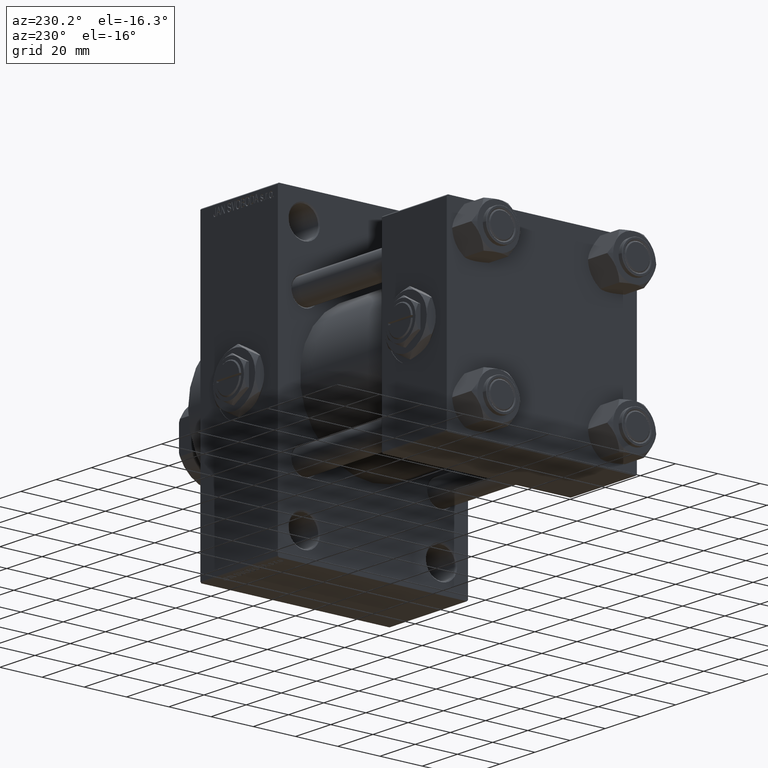
[diagram: clean part render]
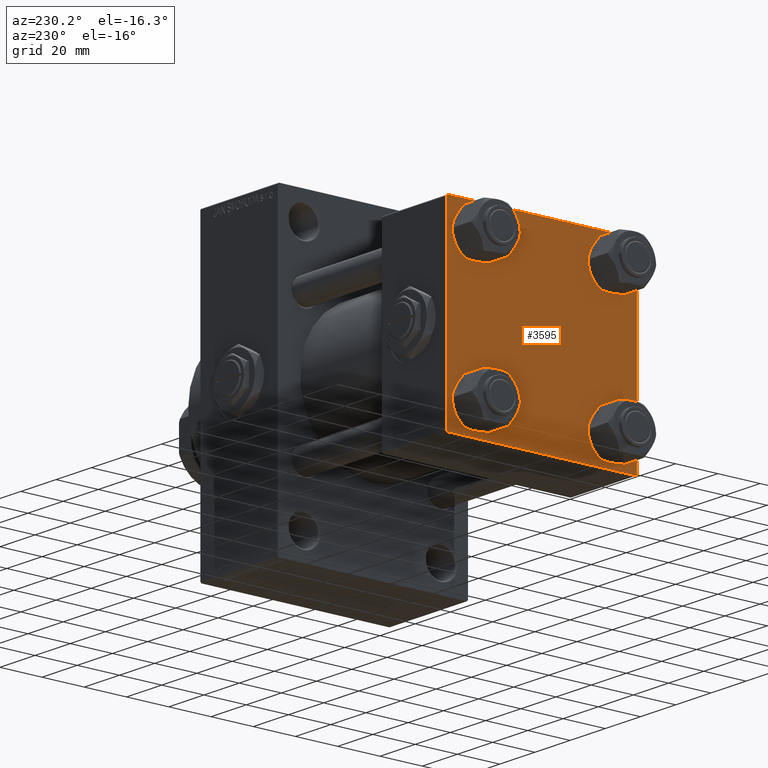
[diagram: same view with one face highlighted and labeled with its STEP entity id]
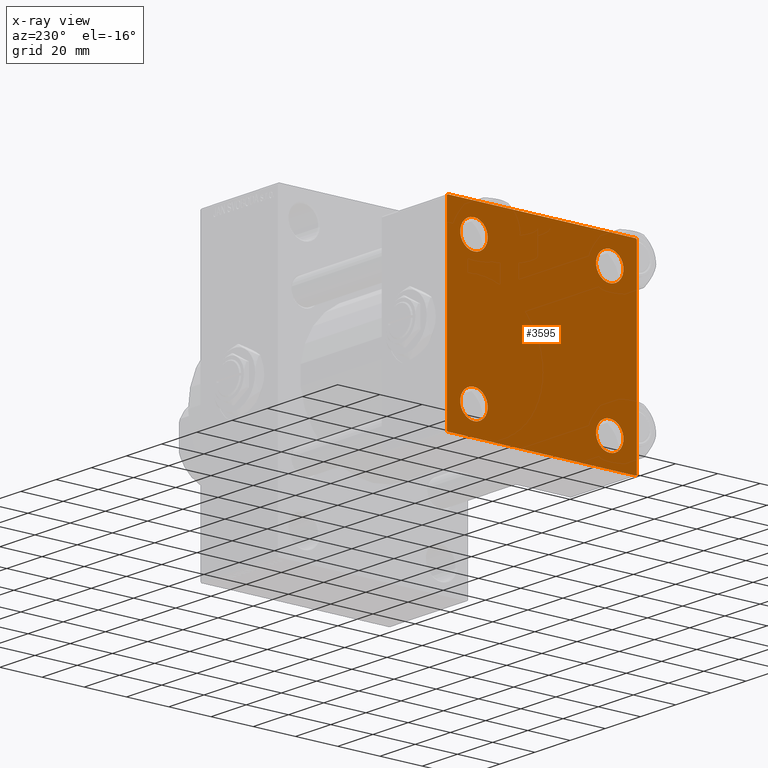
[diagram: x-ray of the same camera — body ghosted, the highlighted face saturated]
A machine part, auxiliary view. The second image highlights one B-rep face of the part: STEP entity #3595.
The next image is the same camera in x-ray: the body ghosted, the highlighted face saturated — about 0% of this face is hidden behind the body in this view.
In plain terms, the highlighted planar face has unit normal (-1, 0, 0).
Its self-contained STEP definition (entity closure, byte-faithful):
#136 = DIRECTION ( 'NONE',  ( 0.000000000000000000, 0.000000000000000000, 1.000000000000000000 ) ) ;
#345 = FACE_OUTER_BOUND ( 'NONE', #4089, .T. ) ;
#622 = VERTEX_POINT ( 'NONE', #14293 ) ;
#1809 = AXIS2_PLACEMENT_3D ( 'NONE', #7377, #27048, #136 ) ;
#1887 = ORIENTED_EDGE ( 'NONE', *, *, #38608, .F. ) ;
#2057 = DIRECTION ( 'NONE',  ( 0.000000000000000000, 0.000000000000000000, 1.000000000000000000 ) ) ;
#2187 = CARTESIAN_POINT ( 'NONE',  ( 0.000000000000000000, 44.99999999999998579, 45.00000000000001421 ) ) ;
#2371 = EDGE_CURVE ( 'NONE', #32012, #8117, #25524, .T. ) ;
#2695 = CIRCLE ( 'NONE', #20220, 6.500000000000019540 ) ;
#3351 = CARTESIAN_POINT ( 'NONE',  ( 0.000000000000000000, 44.49999999999998579, -44.99999999999998579 ) ) ;
#3595 = ADVANCED_FACE ( 'NONE', ( #31014, #26533, #4086, #30777, #345 ), #45967, .T. ) ;
#4086 = FACE_BOUND ( 'NONE', #34929, .T. ) ;
#4089 = EDGE_LOOP ( 'NONE', ( #37182, #25347, #30563, #41680, #1887, #44885, #48570, #26129 ) ) ;
#5018 = VECTOR ( 'NONE', #6180, 1000.000000000000000 ) ;
#5196 = VERTEX_POINT ( 'NONE', #31880 ) ;
#5200 = LINE ( 'NONE', #2187, #5018 ) ;
#5568 = EDGE_CURVE ( 'NONE', #8069, #47078, #18339, .T. ) ;
#5864 = AXIS2_PLACEMENT_3D ( 'NONE', #39366, #12185, #38382 ) ;
#6180 = DIRECTION ( 'NONE',  ( 0.000000000000000000, 0.000000000000000000, -1.000000000000000000 ) ) ;
#6206 = CARTESIAN_POINT ( 'NONE',  ( 0.000000000000000000, -32.14999999999997726, 25.64999999999999147 ) ) ;
#6373 = AXIS2_PLACEMENT_3D ( 'NONE', #14598, #7385, #6402 ) ;
#6384 = CARTESIAN_POINT ( 'NONE',  ( 0.000000000000000000, -32.14999999999997726, -25.65000000000003411 ) ) ;
#6402 = DIRECTION ( 'NONE',  ( 0.000000000000000000, 0.000000000000000000, 1.000000000000000000 ) ) ;
#7098 = DIRECTION ( 'NONE',  ( 0.000000000000000000, -0.7071067811865474617, 0.7071067811865474617 ) ) ;
#7228 = DIRECTION ( 'NONE',  ( 0.000000000000000000, 7.709882115452476934E-17, -1.000000000000000000 ) ) ;
#7377 = CARTESIAN_POINT ( 'NONE',  ( 0.000000000000000000, -32.14999999999997726, 32.15000000000001279 ) ) ;
#7385 = DIRECTION ( 'NONE',  ( 1.000000000000000000, -0.000000000000000000, 0.000000000000000000 ) ) ;
#7589 = DIRECTION ( 'NONE',  ( -0.000000000000000000, 0.000000000000000000, 1.000000000000000000 ) ) ;
#7622 = CARTESIAN_POINT ( 'NONE',  ( 0.000000000000000000, 44.99999999999998579, 44.50000000000001421 ) ) ;
#8069 = VERTEX_POINT ( 'NONE', #20229 ) ;
#8117 = VERTEX_POINT ( 'NONE', #23964 ) ;
#8143 = EDGE_CURVE ( 'NONE', #14222, #48624, #12064, .T. ) ;
#9106 = DIRECTION ( 'NONE',  ( 0.000000000000000000, 0.000000000000000000, 1.000000000000000000 ) ) ;
#9664 = EDGE_CURVE ( 'NONE', #5196, #33895, #30677, .T. ) ;
#9719 = VECTOR ( 'NONE', #18957, 1000.000000000000114 ) ;
#10227 = CARTESIAN_POINT ( 'NONE',  ( 0.000000000000000000, -32.14999999999997726, -38.64999999999999147 ) ) ;
#10607 = LINE ( 'NONE', #13861, #45536 ) ;
#11458 = CARTESIAN_POINT ( 'NONE',  ( 0.000000000000000000, -45.00000000000000000, -44.49999999999995737 ) ) ;
#11811 = CARTESIAN_POINT ( 'NONE',  ( 0.000000000000000000, 0.000000000000000000, 0.000000000000000000 ) ) ;
#12064 = CIRCLE ( 'NONE', #39934, 6.499999999999977796 ) ;
#12185 = DIRECTION ( 'NONE',  ( 1.000000000000000000, -0.000000000000000000, 0.000000000000000000 ) ) ;
#12347 = CARTESIAN_POINT ( 'NONE',  ( 0.000000000000000000, -32.14999999999997726, -32.15000000000001279 ) ) ;
#13129 = DIRECTION ( 'NONE',  ( 0.000000000000000000, -1.000000000000000000, -1.541976423090495633E-16 ) ) ;
#13861 = CARTESIAN_POINT ( 'NONE',  ( 0.000000000000000000, 44.99999999999998579, 45.00000000000001421 ) ) ;
#13879 = VECTOR ( 'NONE', #32747, 1000.000000000000114 ) ;
#14222 = VERTEX_POINT ( 'NONE', #6384 ) ;
#14293 = CARTESIAN_POINT ( 'NONE',  ( 0.000000000000000000, -32.14999999999997726, 38.65000000000003411 ) ) ;
#14549 = EDGE_CURVE ( 'NONE', #26441, #39357, #16807, .T. ) ;
#14598 = CARTESIAN_POINT ( 'NONE',  ( 0.000000000000000000, 32.14999999999999147, -32.15000000000000568 ) ) ;
#14906 = VECTOR ( 'NONE', #13129, 1000.000000000000000 ) ;
#14951 = LINE ( 'NONE', #38145, #36773 ) ;
#15189 = ORIENTED_EDGE ( 'NONE', *, *, #46590, .T. ) ;
#15453 = CARTESIAN_POINT ( 'NONE',  ( 0.000000000000000000, 44.74999999999999289, 44.74999999999999289 ) ) ;
#15674 = CARTESIAN_POINT ( 'NONE',  ( 0.000000000000000000, 32.14999999999999147, 32.15000000000000568 ) ) ;
#16083 = EDGE_CURVE ( 'NONE', #48624, #14222, #40181, .T. ) ;
#16227 = DIRECTION ( 'NONE',  ( 0.000000000000000000, 0.000000000000000000, 1.000000000000000000 ) ) ;
#16807 = LINE ( 'NONE', #46969, #13879 ) ;
#16875 = CARTESIAN_POINT ( 'NONE',  ( 0.000000000000000000, 44.99999999999998579, -44.99999999999998579 ) ) ;
#17363 = LINE ( 'NONE', #16875, #14906 ) ;
#18339 = LINE ( 'NONE', #30305, #20051 ) ;
#18363 = DIRECTION ( 'NONE',  ( 1.000000000000000000, -0.000000000000000000, 0.000000000000000000 ) ) ;
#18821 = LINE ( 'NONE', #37516, #26359 ) ;
#18957 = DIRECTION ( 'NONE',  ( 0.000000000000000000, 0.7071067811865474617, -0.7071067811865474617 ) ) ;
#19499 = CARTESIAN_POINT ( 'NONE',  ( 0.000000000000000000, 32.14999999999999147, -25.65000000000002700 ) ) ;
#19661 = DIRECTION ( 'NONE',  ( 0.000000000000000000, 0.000000000000000000, 1.000000000000000000 ) ) ;
#20049 = VERTEX_POINT ( 'NONE', #19499 ) ;
#20051 = VECTOR ( 'NONE', #48493, 1000.000000000000114 ) ;
#20220 = AXIS2_PLACEMENT_3D ( 'NONE', #36843, #18363, #22348 ) ;
#20229 = CARTESIAN_POINT ( 'NONE',  ( 0.000000000000000000, 44.99999999999998579, -44.49999999999995737 ) ) ;
#20436 = AXIS2_PLACEMENT_3D ( 'NONE', #21011, #36214, #2057 ) ;
#20749 = CARTESIAN_POINT ( 'NONE',  ( 0.000000000000000000, -44.49999999999995737, 45.00000000000000000 ) ) ;
#21011 = CARTESIAN_POINT ( 'NONE',  ( 0.000000000000000000, 32.14999999999999147, 32.15000000000000568 ) ) ;
#22348 = DIRECTION ( 'NONE',  ( 0.000000000000000000, 0.000000000000000000, 1.000000000000000000 ) ) ;
#23009 = EDGE_CURVE ( 'NONE', #8117, #32012, #38726, .T. ) ;
#23329 = DIRECTION ( 'NONE',  ( 1.000000000000000000, -0.000000000000000000, 0.000000000000000000 ) ) ;
#23964 = CARTESIAN_POINT ( 'NONE',  ( 0.000000000000000000, 32.14999999999999147, 38.64999999999999147 ) ) ;
#25340 = EDGE_CURVE ( 'NONE', #47078, #44279, #17363, .T. ) ;
#25347 = ORIENTED_EDGE ( 'NONE', *, *, #5568, .T. ) ;
#25524 = CIRCLE ( 'NONE', #33452, 6.499999999999977796 ) ;
#25681 = ORIENTED_EDGE ( 'NONE', *, *, #47722, .T. ) ;
#25931 = CIRCLE ( 'NONE', #6373, 6.499999999999977796 ) ;
#25950 = CARTESIAN_POINT ( 'NONE',  ( 0.000000000000000000, 32.14999999999999147, -38.64999999999998437 ) ) ;
#26097 = EDGE_LOOP ( 'NONE', ( #25681, #31436 ) ) ;
#26129 = ORIENTED_EDGE ( 'NONE', *, *, #9664, .T. ) ;
#26359 = VECTOR ( 'NONE', #7098, 1000.000000000000114 ) ;
#26441 = VERTEX_POINT ( 'NONE', #35784 ) ;
#26533 = FACE_BOUND ( 'NONE', #46437, .T. ) ;
#26702 = ORIENTED_EDGE ( 'NONE', *, *, #2371, .T. ) ;
#27048 = DIRECTION ( 'NONE',  ( 1.000000000000000000, -0.000000000000000000, 0.000000000000000000 ) ) ;
#27939 = CARTESIAN_POINT ( 'NONE',  ( 0.000000000000000000, -32.14999999999997726, -32.15000000000001279 ) ) ;
#29708 = CARTESIAN_POINT ( 'NONE',  ( 0.000000000000000000, -44.49999999999995737, -45.00000000000000000 ) ) ;
#30305 = CARTESIAN_POINT ( 'NONE',  ( 0.000000000000000000, 44.74999999999998579, -44.74999999999998579 ) ) ;
#30563 = ORIENTED_EDGE ( 'NONE', *, *, #25340, .T. ) ;
#30677 = LINE ( 'NONE', #15453, #9719 ) ;
#30777 = FACE_BOUND ( 'NONE', #46534, .T. ) ;
#30887 = DIRECTION ( 'NONE',  ( 1.000000000000000000, -0.000000000000000000, 0.000000000000000000 ) ) ;
#31014 = FACE_BOUND ( 'NONE', #26097, .T. ) ;
#31436 = ORIENTED_EDGE ( 'NONE', *, *, #43950, .T. ) ;
#31880 = CARTESIAN_POINT ( 'NONE',  ( 0.000000000000000000, 44.49999999999998579, 45.00000000000001421 ) ) ;
#32012 = VERTEX_POINT ( 'NONE', #47168 ) ;
#32182 = ORIENTED_EDGE ( 'NONE', *, *, #16083, .T. ) ;
#32747 = DIRECTION ( 'NONE',  ( -0.000000000000000000, 0.7071067811865425767, 0.7071067811865524577 ) ) ;
#33452 = AXIS2_PLACEMENT_3D ( 'NONE', #15674, #30887, #19661 ) ;
#33538 = VERTEX_POINT ( 'NONE', #6206 ) ;
#33895 = VERTEX_POINT ( 'NONE', #7622 ) ;
#34070 = VERTEX_POINT ( 'NONE', #25950 ) ;
#34741 = EDGE_CURVE ( 'NONE', #34070, #20049, #25931, .T. ) ;
#34929 = EDGE_LOOP ( 'NONE', ( #15189, #36301 ) ) ;
#35784 = CARTESIAN_POINT ( 'NONE',  ( 0.000000000000000000, -45.00000000000000711, 44.49999999999997158 ) ) ;
#36120 = CIRCLE ( 'NONE', #5864, 6.499999999999977796 ) ;
#36214 = DIRECTION ( 'NONE',  ( 1.000000000000000000, -0.000000000000000000, 0.000000000000000000 ) ) ;
#36301 = ORIENTED_EDGE ( 'NONE', *, *, #34741, .T. ) ;
#36773 = VECTOR ( 'NONE', #7228, 1000.000000000000000 ) ;
#36843 = CARTESIAN_POINT ( 'NONE',  ( 0.000000000000000000, -32.14999999999997726, 32.15000000000001279 ) ) ;
#37182 = ORIENTED_EDGE ( 'NONE', *, *, #44953, .T. ) ;
#37515 = AXIS2_PLACEMENT_3D ( 'NONE', #11811, #42220, #7589 ) ;
#37516 = CARTESIAN_POINT ( 'NONE',  ( 0.000000000000000000, -44.74999999999998579, -44.74999999999998579 ) ) ;
#37886 = EDGE_CURVE ( 'NONE', #44279, #46517, #18821, .T. ) ;
#38145 = CARTESIAN_POINT ( 'NONE',  ( 0.000000000000000000, -45.00000000000000711, 45.00000000000000000 ) ) ;
#38382 = DIRECTION ( 'NONE',  ( 0.000000000000000000, 0.000000000000000000, 1.000000000000000000 ) ) ;
#38608 = EDGE_CURVE ( 'NONE', #26441, #46517, #14951, .T. ) ;
#38726 = CIRCLE ( 'NONE', #20436, 6.499999999999977796 ) ;
#39357 = VERTEX_POINT ( 'NONE', #20749 ) ;
#39366 = CARTESIAN_POINT ( 'NONE',  ( 0.000000000000000000, 32.14999999999999147, -32.15000000000000568 ) ) ;
#39801 = DIRECTION ( 'NONE',  ( 0.000000000000000000, -1.000000000000000000, -1.541976423090495387E-16 ) ) ;
#39934 = AXIS2_PLACEMENT_3D ( 'NONE', #27939, #45214, #16227 ) ;
#40036 = CIRCLE ( 'NONE', #1809, 6.500000000000019540 ) ;
#40181 = CIRCLE ( 'NONE', #40995, 6.499999999999977796 ) ;
#40995 = AXIS2_PLACEMENT_3D ( 'NONE', #12347, #23329, #9106 ) ;
#41680 = ORIENTED_EDGE ( 'NONE', *, *, #37886, .T. ) ;
#41934 = ORIENTED_EDGE ( 'NONE', *, *, #23009, .T. ) ;
#42220 = DIRECTION ( 'NONE',  ( -1.000000000000000000, 0.000000000000000000, -0.000000000000000000 ) ) ;
#43219 = EDGE_CURVE ( 'NONE', #5196, #39357, #10607, .T. ) ;
#43950 = EDGE_CURVE ( 'NONE', #33538, #622, #40036, .T. ) ;
#44279 = VERTEX_POINT ( 'NONE', #29708 ) ;
#44399 = ORIENTED_EDGE ( 'NONE', *, *, #8143, .T. ) ;
#44885 = ORIENTED_EDGE ( 'NONE', *, *, #14549, .T. ) ;
#44953 = EDGE_CURVE ( 'NONE', #33895, #8069, #5200, .T. ) ;
#45214 = DIRECTION ( 'NONE',  ( 1.000000000000000000, -0.000000000000000000, 0.000000000000000000 ) ) ;
#45536 = VECTOR ( 'NONE', #39801, 1000.000000000000000 ) ;
#45967 = PLANE ( 'NONE',  #37515 ) ;
#46437 = EDGE_LOOP ( 'NONE', ( #44399, #32182 ) ) ;
#46517 = VERTEX_POINT ( 'NONE', #11458 ) ;
#46534 = EDGE_LOOP ( 'NONE', ( #41934, #26702 ) ) ;
#46590 = EDGE_CURVE ( 'NONE', #20049, #34070, #36120, .T. ) ;
#46969 = CARTESIAN_POINT ( 'NONE',  ( -0.000000000000000000, -44.75000000000029843, 44.74999999999967315 ) ) ;
#47078 = VERTEX_POINT ( 'NONE', #3351 ) ;
#47168 = CARTESIAN_POINT ( 'NONE',  ( 0.000000000000000000, 32.14999999999999147, 25.65000000000002700 ) ) ;
#47722 = EDGE_CURVE ( 'NONE', #622, #33538, #2695, .T. ) ;
#48493 = DIRECTION ( 'NONE',  ( -0.000000000000000000, -0.7071067811865474617, -0.7071067811865474617 ) ) ;
#48570 = ORIENTED_EDGE ( 'NONE', *, *, #43219, .F. ) ;
#48624 = VERTEX_POINT ( 'NONE', #10227 ) ;